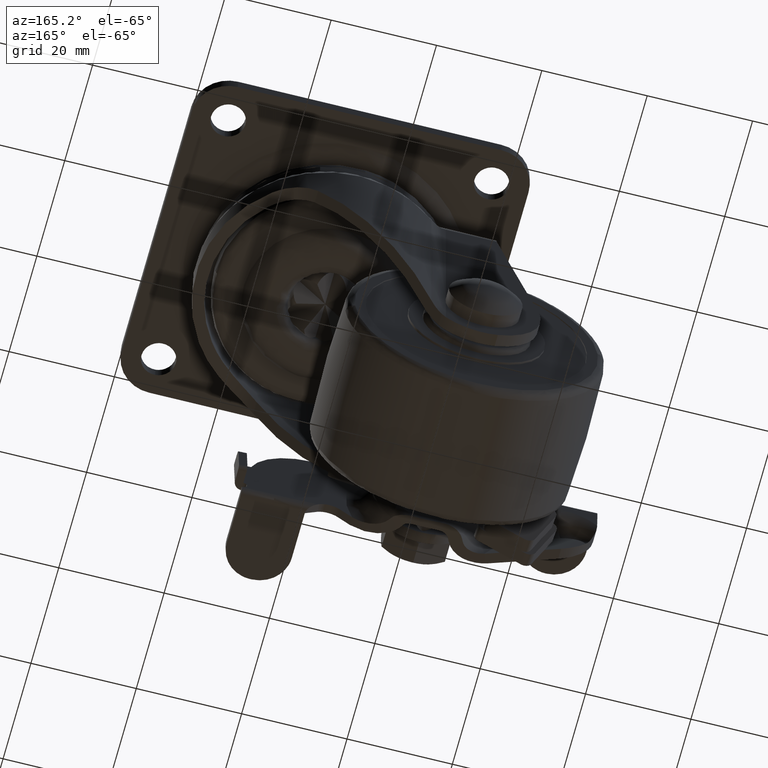
[diagram: clean part render]
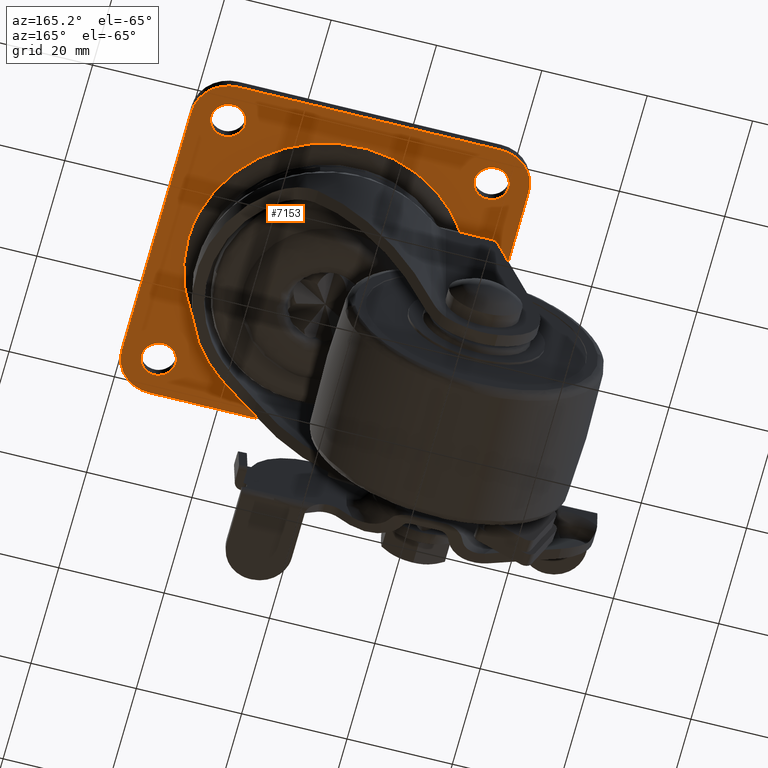
[diagram: same view with one face highlighted and labeled with its STEP entity id]
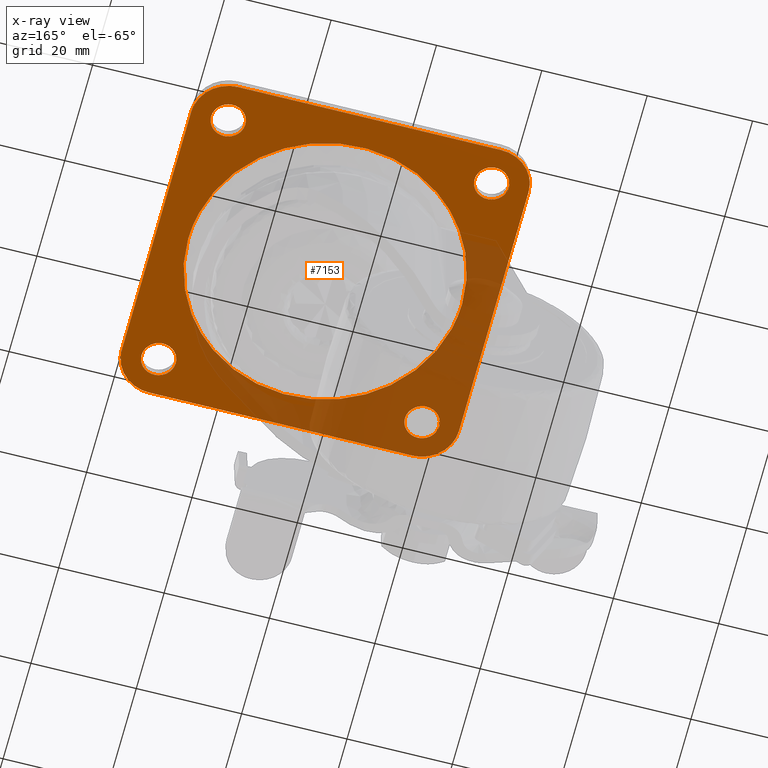
[diagram: x-ray of the same camera — body ghosted, the highlighted face saturated]
A machine part, auxiliary view. The second image highlights one B-rep face of the part: STEP entity #7153.
The next image is the same camera in x-ray: the body ghosted, the highlighted face saturated — about 34% of this face is hidden behind the body in this view.
In plain terms, the highlighted face is a freeform B-spline surface patch.
Its self-contained STEP definition (entity closure, byte-faithful):
#5211=CARTESIAN_POINT('',(-24.801592246450781,28.243938094867339,-2.300000000000080));
#5212=VERTEX_POINT('',#5211);
#5218=CARTESIAN_POINT('',(-21.750000000000000,25.0,-2.300000000000080));
#5219=VERTEX_POINT('',#5218);
#5220=CARTESIAN_POINT('',(-21.750000000000000,25.0,-2.300000000000080));
#5221=CARTESIAN_POINT('',(-21.750000000000000,28.057294717385968,-2.300000000000080));
#5222=CARTESIAN_POINT('',(-24.801592246450777,28.243938094867346,-2.300000000000080));
#5230=(BOUNDED_CURVE()B_SPLINE_CURVE(2,(#5220,#5221,#5222),.UNSPECIFIED.,.F.,.U.)B_SPLINE_CURVE_WITH_KNOTS((3,3),(0.500000000000000,0.739332962238727),.UNSPECIFIED.)CURVE()GEOMETRIC_REPRESENTATION_ITEM()RATIONAL_B_SPLINE_CURVE((1.0,0.719603993286963,0.976072041666256))REPRESENTATION_ITEM(''));
#5231=EDGE_CURVE('',#5219,#5212,#5230,.T.);
#5233=CARTESIAN_POINT('',(-25.198407753549219,21.756061905132661,-2.300000000000080));
#5234=VERTEX_POINT('',#5233);
#5235=CARTESIAN_POINT('',(-25.198407753549223,21.756061905132661,-2.300000000000080));
#5236=CARTESIAN_POINT('',(-25.099296480750962,21.750000000000004,-2.300000000000079));
#5237=CARTESIAN_POINT('',(-25.0,21.750000000000000,-2.300000000000080));
#5238=CARTESIAN_POINT('',(-21.750000000000004,21.750000000000004,-2.300000000000081));
#5239=CARTESIAN_POINT('',(-21.750000000000000,25.0,-2.300000000000080));
#5247=(BOUNDED_CURVE()B_SPLINE_CURVE(2,(#5235,#5236,#5237,#5238,#5239),.UNSPECIFIED.,.F.,.U.)B_SPLINE_CURVE_WITH_KNOTS((3,2,3),(0.239332962238727,0.250000000000000,0.500000000000000),.UNSPECIFIED.)CURVE()GEOMETRIC_REPRESENTATION_ITEM()RATIONAL_B_SPLINE_CURVE((0.976072041666255,0.987502787899585,1.0,0.707106781186547,1.0))REPRESENTATION_ITEM(''));
#5248=EDGE_CURVE('',#5234,#5219,#5247,.T.);
#5292=CARTESIAN_POINT('',(-28.250000000000000,25.0,-2.300000000000080));
#5293=VERTEX_POINT('',#5292);
#5294=CARTESIAN_POINT('',(-28.250000000000000,25.0,-2.300000000000080));
#5295=CARTESIAN_POINT('',(-28.249999999999996,21.942705282614028,-2.300000000000080));
#5296=CARTESIAN_POINT('',(-25.198407753549226,21.756061905132665,-2.300000000000080));
#5304=(BOUNDED_CURVE()B_SPLINE_CURVE(2,(#5294,#5295,#5296),.UNSPECIFIED.,.F.,.U.)B_SPLINE_CURVE_WITH_KNOTS((3,3),(0.0,0.239332962238727),.UNSPECIFIED.)CURVE()GEOMETRIC_REPRESENTATION_ITEM()RATIONAL_B_SPLINE_CURVE((1.0,0.719603993286963,0.976072041666255))REPRESENTATION_ITEM(''));
#5305=EDGE_CURVE('',#5293,#5234,#5304,.T.);
#5307=CARTESIAN_POINT('',(-24.801592246450777,28.243938094867346,-2.300000000000080));
#5308=CARTESIAN_POINT('',(-24.900703519249035,28.250000000000004,-2.300000000000079));
#5309=CARTESIAN_POINT('',(-25.0,28.250000000000000,-2.300000000000080));
#5310=CARTESIAN_POINT('',(-28.250000000000004,28.250000000000004,-2.300000000000081));
#5311=CARTESIAN_POINT('',(-28.250000000000000,25.0,-2.300000000000080));
#5319=(BOUNDED_CURVE()B_SPLINE_CURVE(2,(#5307,#5308,#5309,#5310,#5311),.UNSPECIFIED.,.F.,.U.)B_SPLINE_CURVE_WITH_KNOTS((3,2,3),(0.739332962238727,0.750000000000000,1.0),.UNSPECIFIED.)CURVE()GEOMETRIC_REPRESENTATION_ITEM()RATIONAL_B_SPLINE_CURVE((0.976072041666256,0.987502787899585,1.0,0.707106781186547,1.0))REPRESENTATION_ITEM(''));
#5320=EDGE_CURVE('',#5212,#5293,#5319,.T.);
#5393=CARTESIAN_POINT('',(25.198407753549219,28.243938094867339,-2.300000000000080));
#5394=VERTEX_POINT('',#5393);
#5400=CARTESIAN_POINT('',(28.250000000000000,25.0,-2.300000000000080));
#5401=VERTEX_POINT('',#5400);
#5402=CARTESIAN_POINT('',(28.250000000000000,25.0,-2.300000000000080));
#5403=CARTESIAN_POINT('',(28.250000000000007,28.057294717385975,-2.300000000000079));
#5404=CARTESIAN_POINT('',(25.198407753549219,28.243938094867332,-2.300000000000080));
#5412=(BOUNDED_CURVE()B_SPLINE_CURVE(2,(#5402,#5403,#5404),.UNSPECIFIED.,.F.,.U.)B_SPLINE_CURVE_WITH_KNOTS((3,3),(0.500000000000000,0.739332962238727),.UNSPECIFIED.)CURVE()GEOMETRIC_REPRESENTATION_ITEM()RATIONAL_B_SPLINE_CURVE((1.0,0.719603993286963,0.976072041666255))REPRESENTATION_ITEM(''));
#5413=EDGE_CURVE('',#5401,#5394,#5412,.T.);
#5415=CARTESIAN_POINT('',(24.801592246450781,21.756061905132661,-2.300000000000080));
#5416=VERTEX_POINT('',#5415);
#5417=CARTESIAN_POINT('',(24.801592246450777,21.756061905132661,-2.300000000000080));
#5418=CARTESIAN_POINT('',(24.900703519249035,21.750000000000004,-2.300000000000079));
#5419=CARTESIAN_POINT('',(25.0,21.750000000000000,-2.300000000000080));
#5420=CARTESIAN_POINT('',(28.250000000000004,21.750000000000004,-2.300000000000081));
#5421=CARTESIAN_POINT('',(28.250000000000000,25.0,-2.300000000000080));
#5429=(BOUNDED_CURVE()B_SPLINE_CURVE(2,(#5417,#5418,#5419,#5420,#5421),.UNSPECIFIED.,.F.,.U.)B_SPLINE_CURVE_WITH_KNOTS((3,2,3),(0.239332962238727,0.250000000000000,0.500000000000000),.UNSPECIFIED.)CURVE()GEOMETRIC_REPRESENTATION_ITEM()RATIONAL_B_SPLINE_CURVE((0.976072041666255,0.987502787899585,1.0,0.707106781186547,1.0))REPRESENTATION_ITEM(''));
#5430=EDGE_CURVE('',#5416,#5401,#5429,.T.);
#5474=CARTESIAN_POINT('',(21.750000000000000,25.0,-2.300000000000080));
#5475=VERTEX_POINT('',#5474);
#5476=CARTESIAN_POINT('',(21.750000000000000,25.0,-2.300000000000080));
#5477=CARTESIAN_POINT('',(21.750000000000011,21.942705282614039,-2.300000000000080));
#5478=CARTESIAN_POINT('',(24.801592246450781,21.756061905132658,-2.300000000000080));
#5486=(BOUNDED_CURVE()B_SPLINE_CURVE(2,(#5476,#5477,#5478),.UNSPECIFIED.,.F.,.U.)B_SPLINE_CURVE_WITH_KNOTS((3,3),(0.0,0.239332962238727),.UNSPECIFIED.)CURVE()GEOMETRIC_REPRESENTATION_ITEM()RATIONAL_B_SPLINE_CURVE((1.0,0.719603993286963,0.976072041666255))REPRESENTATION_ITEM(''));
#5487=EDGE_CURVE('',#5475,#5416,#5486,.T.);
#5489=CARTESIAN_POINT('',(25.198407753549226,28.243938094867342,-2.300000000000080));
#5490=CARTESIAN_POINT('',(25.099296480750969,28.250000000000004,-2.300000000000080));
#5491=CARTESIAN_POINT('',(25.0,28.250000000000000,-2.300000000000080));
#5492=CARTESIAN_POINT('',(21.750000000000004,28.250000000000004,-2.300000000000081));
#5493=CARTESIAN_POINT('',(21.750000000000000,25.0,-2.300000000000080));
#5501=(BOUNDED_CURVE()B_SPLINE_CURVE(2,(#5489,#5490,#5491,#5492,#5493),.UNSPECIFIED.,.F.,.U.)B_SPLINE_CURVE_WITH_KNOTS((3,2,3),(0.739332962238727,0.750000000000000,1.0),.UNSPECIFIED.)CURVE()GEOMETRIC_REPRESENTATION_ITEM()RATIONAL_B_SPLINE_CURVE((0.976072041666255,0.987502787899584,1.0,0.707106781186547,1.0))REPRESENTATION_ITEM(''));
#5502=EDGE_CURVE('',#5394,#5475,#5501,.T.);
#5575=CARTESIAN_POINT('',(-24.801592246450781,-21.756061905132661,-2.300000000000080));
#5576=VERTEX_POINT('',#5575);
#5582=CARTESIAN_POINT('',(-21.750000000000000,-25.0,-2.300000000000080));
#5583=VERTEX_POINT('',#5582);
#5584=CARTESIAN_POINT('',(-21.750000000000000,-25.0,-2.300000000000080));
#5585=CARTESIAN_POINT('',(-21.750000000000000,-21.942705282614032,-2.300000000000080));
#5586=CARTESIAN_POINT('',(-24.801592246450777,-21.756061905132658,-2.300000000000080));
#5594=(BOUNDED_CURVE()B_SPLINE_CURVE(2,(#5584,#5585,#5586),.UNSPECIFIED.,.F.,.U.)B_SPLINE_CURVE_WITH_KNOTS((3,3),(0.500000000000000,0.739332962238727),.UNSPECIFIED.)CURVE()GEOMETRIC_REPRESENTATION_ITEM()RATIONAL_B_SPLINE_CURVE((1.0,0.719603993286963,0.976072041666256))REPRESENTATION_ITEM(''));
#5595=EDGE_CURVE('',#5583,#5576,#5594,.T.);
#5597=CARTESIAN_POINT('',(-25.198407753549219,-28.243938094867339,-2.300000000000080));
#5598=VERTEX_POINT('',#5597);
#5599=CARTESIAN_POINT('',(-25.198407753549223,-28.243938094867339,-2.300000000000080));
#5600=CARTESIAN_POINT('',(-25.099296480750969,-28.250000000000004,-2.300000000000080));
#5601=CARTESIAN_POINT('',(-25.0,-28.250000000000000,-2.300000000000080));
#5602=CARTESIAN_POINT('',(-21.750000000000004,-28.250000000000004,-2.300000000000081));
#5603=CARTESIAN_POINT('',(-21.750000000000000,-25.0,-2.300000000000080));
#5611=(BOUNDED_CURVE()B_SPLINE_CURVE(2,(#5599,#5600,#5601,#5602,#5603),.UNSPECIFIED.,.F.,.U.)B_SPLINE_CURVE_WITH_KNOTS((3,2,3),(0.239332962238727,0.250000000000000,0.500000000000000),.UNSPECIFIED.)CURVE()GEOMETRIC_REPRESENTATION_ITEM()RATIONAL_B_SPLINE_CURVE((0.976072041666255,0.987502787899584,1.0,0.707106781186547,1.0))REPRESENTATION_ITEM(''));
#5612=EDGE_CURVE('',#5598,#5583,#5611,.T.);
#5656=CARTESIAN_POINT('',(-28.250000000000000,-25.0,-2.300000000000080));
#5657=VERTEX_POINT('',#5656);
#5658=CARTESIAN_POINT('',(-28.250000000000000,-25.0,-2.300000000000080));
#5659=CARTESIAN_POINT('',(-28.249999999999996,-28.057294717385968,-2.300000000000080));
#5660=CARTESIAN_POINT('',(-25.198407753549230,-28.243938094867335,-2.300000000000080));
#5668=(BOUNDED_CURVE()B_SPLINE_CURVE(2,(#5658,#5659,#5660),.UNSPECIFIED.,.F.,.U.)B_SPLINE_CURVE_WITH_KNOTS((3,3),(0.0,0.239332962238727),.UNSPECIFIED.)CURVE()GEOMETRIC_REPRESENTATION_ITEM()RATIONAL_B_SPLINE_CURVE((1.0,0.719603993286963,0.976072041666255))REPRESENTATION_ITEM(''));
#5669=EDGE_CURVE('',#5657,#5598,#5668,.T.);
#5671=CARTESIAN_POINT('',(-24.801592246450777,-21.756061905132658,-2.300000000000080));
#5672=CARTESIAN_POINT('',(-24.900703519249035,-21.750000000000004,-2.300000000000079));
#5673=CARTESIAN_POINT('',(-25.0,-21.750000000000000,-2.300000000000080));
#5674=CARTESIAN_POINT('',(-28.250000000000004,-21.750000000000004,-2.300000000000081));
#5675=CARTESIAN_POINT('',(-28.250000000000000,-25.0,-2.300000000000080));
#5683=(BOUNDED_CURVE()B_SPLINE_CURVE(2,(#5671,#5672,#5673,#5674,#5675),.UNSPECIFIED.,.F.,.U.)B_SPLINE_CURVE_WITH_KNOTS((3,2,3),(0.739332962238727,0.750000000000000,1.0),.UNSPECIFIED.)CURVE()GEOMETRIC_REPRESENTATION_ITEM()RATIONAL_B_SPLINE_CURVE((0.976072041666256,0.987502787899585,1.0,0.707106781186547,1.0))REPRESENTATION_ITEM(''));
#5684=EDGE_CURVE('',#5576,#5657,#5683,.T.);
#5757=CARTESIAN_POINT('',(25.198407753549219,-21.756061905132661,-2.300000000000080));
#5758=VERTEX_POINT('',#5757);
#5764=CARTESIAN_POINT('',(28.250000000000000,-25.0,-2.300000000000080));
#5765=VERTEX_POINT('',#5764);
#5766=CARTESIAN_POINT('',(28.250000000000000,-25.0,-2.300000000000080));
#5767=CARTESIAN_POINT('',(28.250000000000000,-21.942705282614032,-2.300000000000080));
#5768=CARTESIAN_POINT('',(25.198407753549223,-21.756061905132658,-2.300000000000080));
#5776=(BOUNDED_CURVE()B_SPLINE_CURVE(2,(#5766,#5767,#5768),.UNSPECIFIED.,.F.,.U.)B_SPLINE_CURVE_WITH_KNOTS((3,3),(0.500000000000000,0.739332962238727),.UNSPECIFIED.)CURVE()GEOMETRIC_REPRESENTATION_ITEM()RATIONAL_B_SPLINE_CURVE((1.0,0.719603993286963,0.976072041666256))REPRESENTATION_ITEM(''));
#5777=EDGE_CURVE('',#5765,#5758,#5776,.T.);
#5779=CARTESIAN_POINT('',(24.801592246450781,-28.243938094867339,-2.300000000000079));
#5780=VERTEX_POINT('',#5779);
#5781=CARTESIAN_POINT('',(24.801592246450785,-28.243938094867342,-2.300000000000080));
#5782=CARTESIAN_POINT('',(24.900703519249031,-28.250000000000000,-2.300000000000080));
#5783=CARTESIAN_POINT('',(25.0,-28.250000000000000,-2.300000000000080));
#5784=CARTESIAN_POINT('',(28.250000000000004,-28.250000000000004,-2.300000000000081));
#5785=CARTESIAN_POINT('',(28.250000000000000,-25.0,-2.300000000000080));
#5793=(BOUNDED_CURVE()B_SPLINE_CURVE(2,(#5781,#5782,#5783,#5784,#5785),.UNSPECIFIED.,.F.,.U.)B_SPLINE_CURVE_WITH_KNOTS((3,2,3),(0.239332962238727,0.250000000000000,0.500000000000000),.UNSPECIFIED.)CURVE()GEOMETRIC_REPRESENTATION_ITEM()RATIONAL_B_SPLINE_CURVE((0.976072041666256,0.987502787899585,1.0,0.707106781186547,1.0))REPRESENTATION_ITEM(''));
#5794=EDGE_CURVE('',#5780,#5765,#5793,.T.);
#5838=CARTESIAN_POINT('',(21.750000000000000,-25.0,-2.300000000000080));
#5839=VERTEX_POINT('',#5838);
#5840=CARTESIAN_POINT('',(21.750000000000000,-25.0,-2.300000000000080));
#5841=CARTESIAN_POINT('',(21.750000000000014,-28.057294717385968,-2.300000000000080));
#5842=CARTESIAN_POINT('',(24.801592246450777,-28.243938094867339,-2.300000000000080));
#5850=(BOUNDED_CURVE()B_SPLINE_CURVE(2,(#5840,#5841,#5842),.UNSPECIFIED.,.F.,.U.)B_SPLINE_CURVE_WITH_KNOTS((3,3),(0.0,0.239332962238727),.UNSPECIFIED.)CURVE()GEOMETRIC_REPRESENTATION_ITEM()RATIONAL_B_SPLINE_CURVE((1.0,0.719603993286963,0.976072041666255))REPRESENTATION_ITEM(''));
#5851=EDGE_CURVE('',#5839,#5780,#5850,.T.);
#5853=CARTESIAN_POINT('',(25.198407753549223,-21.756061905132658,-2.300000000000080));
#5854=CARTESIAN_POINT('',(25.099296480750962,-21.750000000000004,-2.300000000000079));
#5855=CARTESIAN_POINT('',(25.0,-21.750000000000000,-2.300000000000080));
#5856=CARTESIAN_POINT('',(21.750000000000004,-21.750000000000004,-2.300000000000081));
#5857=CARTESIAN_POINT('',(21.750000000000000,-25.0,-2.300000000000080));
#5865=(BOUNDED_CURVE()B_SPLINE_CURVE(2,(#5853,#5854,#5855,#5856,#5857),.UNSPECIFIED.,.F.,.U.)B_SPLINE_CURVE_WITH_KNOTS((3,2,3),(0.739332962238727,0.750000000000000,1.0),.UNSPECIFIED.)CURVE()GEOMETRIC_REPRESENTATION_ITEM()RATIONAL_B_SPLINE_CURVE((0.976072041666256,0.987502787899585,1.0,0.707106781186547,1.0))REPRESENTATION_ITEM(''));
#5866=EDGE_CURVE('',#5758,#5839,#5865,.T.);
#6778=CARTESIAN_POINT('',(15.806190535185120,-20.643755586082079,-2.299995616352499));
#6779=VERTEX_POINT('',#6778);
#6793=CARTESIAN_POINT('',(-26.0,0.0,-2.300000000000102));
#6794=VERTEX_POINT('',#6793);
#6795=CARTESIAN_POINT('',(15.806190535185124,-20.643755586082072,-2.299995616352498));
#6796=CARTESIAN_POINT('',(8.810633902118191,-26.000004252482405,-2.299995983117037));
#6797=CARTESIAN_POINT('',(0.000002653926748,-26.000003466174530,-2.299996725861266));
#6798=CARTESIAN_POINT('',(-25.999999122705255,-26.000001145795270,-2.299998917685068));
#6799=CARTESIAN_POINT('',(-26.0,0.0,-2.300000000000102));
#6807=(BOUNDED_CURVE()B_SPLINE_CURVE(2,(#6795,#6796,#6797,#6798,#6799),.UNSPECIFIED.,.F.,.U.)B_SPLINE_CURVE_WITH_KNOTS((3,2,3),(0.644938189342984,0.750000000000000,1.0),.UNSPECIFIED.)CURVE()GEOMETRIC_REPRESENTATION_ITEM()RATIONAL_B_SPLINE_CURVE((0.857279286582045,0.876912432409188,1.0,0.707106781186547,1.0))REPRESENTATION_ITEM(''));
#6808=EDGE_CURVE('',#6779,#6794,#6807,.T.);
#6810=CARTESIAN_POINT('',(-15.806190535185120,20.643755586082079,-2.299995616352499));
#6811=VERTEX_POINT('',#6810);
#6812=CARTESIAN_POINT('',(-26.0,0.0,-2.300000000000102));
#6813=CARTESIAN_POINT('',(-26.000001776632001,12.838712648363053,-2.299997808176300));
#6814=CARTESIAN_POINT('',(-15.806190535185124,20.643755586082072,-2.299995616352500));
#6822=(BOUNDED_CURVE()B_SPLINE_CURVE(2,(#6812,#6813,#6814),.UNSPECIFIED.,.F.,.U.)B_SPLINE_CURVE_WITH_KNOTS((3,3),(0.0,0.144938189342984),.UNSPECIFIED.)CURVE()GEOMETRIC_REPRESENTATION_ITEM()RATIONAL_B_SPLINE_CURVE((1.0,0.830194348777359,0.857279286582045))REPRESENTATION_ITEM(''));
#6823=EDGE_CURVE('',#6794,#6811,#6822,.T.);
#6868=CARTESIAN_POINT('',(26.0,0.0,-2.300000000000095));
#6869=VERTEX_POINT('',#6868);
#6870=CARTESIAN_POINT('',(-15.806190535185124,20.643755586082072,-2.299995616352500));
#6871=CARTESIAN_POINT('',(-8.810633902118189,26.000004252482405,-2.299995983117037));
#6872=CARTESIAN_POINT('',(-0.000002653926747,26.000003466174530,-2.299996725861265));
#6873=CARTESIAN_POINT('',(25.999999122705255,26.000001145795270,-2.299998917685064));
#6874=CARTESIAN_POINT('',(26.0,0.0,-2.300000000000095));
#6882=(BOUNDED_CURVE()B_SPLINE_CURVE(2,(#6870,#6871,#6872,#6873,#6874),.UNSPECIFIED.,.F.,.U.)B_SPLINE_CURVE_WITH_KNOTS((3,2,3),(0.144938189342984,0.250000000000000,0.500000000000000),.UNSPECIFIED.)CURVE()GEOMETRIC_REPRESENTATION_ITEM()RATIONAL_B_SPLINE_CURVE((0.857279286582045,0.876912432409188,1.0,0.707106781186547,1.0))REPRESENTATION_ITEM(''));
#6883=EDGE_CURVE('',#6811,#6869,#6882,.T.);
#6885=CARTESIAN_POINT('',(26.0,0.0,-2.300000000000095));
#6886=CARTESIAN_POINT('',(26.000001776632001,-12.838712648363053,-2.299997808176296));
#6887=CARTESIAN_POINT('',(15.806190535185124,-20.643755586082072,-2.299995616352498));
#6895=(BOUNDED_CURVE()B_SPLINE_CURVE(2,(#6885,#6886,#6887),.UNSPECIFIED.,.F.,.U.)B_SPLINE_CURVE_WITH_KNOTS((3,3),(0.500000000000000,0.644938189342984),.UNSPECIFIED.)CURVE()GEOMETRIC_REPRESENTATION_ITEM()RATIONAL_B_SPLINE_CURVE((1.0,0.830194348777359,0.857279286582045))REPRESENTATION_ITEM(''));
#6896=EDGE_CURVE('',#6869,#6779,#6895,.T.);
#7028=CARTESIAN_POINT('',(-35.196799875955577,35.196799875955577,-2.300000000000095));
#7029=CARTESIAN_POINT('',(35.196801592569351,35.196799875955577,-2.300000000000095));
#7030=CARTESIAN_POINT('',(-35.196799875955577,-35.196801592569351,-2.300000000000095));
#7031=CARTESIAN_POINT('',(35.196801592569351,-35.196801592569351,-2.300000000000095));
#7032=B_SPLINE_SURFACE_WITH_KNOTS('',1,1,((#7028,#7030),(#7029,#7031)),.UNSPECIFIED.,.F.,.F.,.U.,(2,2),(2,2),(0.0,70.393601468524935),(0.0,70.393601468524935),.UNSPECIFIED.);
#7033=CARTESIAN_POINT('',(25.0,32.0,-2.300000000000080));
#7034=VERTEX_POINT('',#7033);
#7035=CARTESIAN_POINT('',(-25.0,32.0,-2.300000000000080));
#7036=VERTEX_POINT('',#7035);
#7037=CARTESIAN_POINT('',(25.0,32.0,-2.300000000000080));
#7038=CARTESIAN_POINT('',(-25.0,32.0,-2.300000000000080));
#7039=QUASI_UNIFORM_CURVE('',1,(#7037,#7038),.UNSPECIFIED.,.F.,.U.);
#7040=EDGE_CURVE('',#7034,#7036,#7039,.T.);
#7041=ORIENTED_EDGE('',*,*,#7040,.F.);
#7042=CARTESIAN_POINT('',(32.0,25.0,-2.300000000000080));
#7043=VERTEX_POINT('',#7042);
#7044=CARTESIAN_POINT('',(32.0,25.0,-2.300000000000080));
#7045=CARTESIAN_POINT('',(32.0,32.0,-2.300000000000081));
#7046=CARTESIAN_POINT('',(25.0,32.0,-2.300000000000080));
#7054=(BOUNDED_CURVE()B_SPLINE_CURVE(2,(#7044,#7045,#7046),.UNSPECIFIED.,.F.,.U.)CURVE()GEOMETRIC_REPRESENTATION_ITEM()QUASI_UNIFORM_CURVE()RATIONAL_B_SPLINE_CURVE((1.0,0.707106781186547,1.0))REPRESENTATION_ITEM(''));
#7055=EDGE_CURVE('',#7043,#7034,#7054,.T.);
#7056=ORIENTED_EDGE('',*,*,#7055,.F.);
#7057=CARTESIAN_POINT('',(32.0,-25.0,-2.300000000000080));
#7058=VERTEX_POINT('',#7057);
#7059=CARTESIAN_POINT('',(32.0,-25.0,-2.300000000000080));
#7060=CARTESIAN_POINT('',(32.0,25.0,-2.300000000000080));
#7061=QUASI_UNIFORM_CURVE('',1,(#7059,#7060),.UNSPECIFIED.,.F.,.U.);
#7062=EDGE_CURVE('',#7058,#7043,#7061,.T.);
#7063=ORIENTED_EDGE('',*,*,#7062,.F.);
#7064=CARTESIAN_POINT('',(25.0,-32.0,-2.300000000000080));
#7065=VERTEX_POINT('',#7064);
#7066=CARTESIAN_POINT('',(25.0,-32.0,-2.300000000000080));
#7067=CARTESIAN_POINT('',(32.0,-32.0,-2.300000000000081));
#7068=CARTESIAN_POINT('',(32.0,-25.0,-2.300000000000080));
#7076=(BOUNDED_CURVE()B_SPLINE_CURVE(2,(#7066,#7067,#7068),.UNSPECIFIED.,.F.,.U.)CURVE()GEOMETRIC_REPRESENTATION_ITEM()QUASI_UNIFORM_CURVE()RATIONAL_B_SPLINE_CURVE((1.0,0.707106781186547,1.0))REPRESENTATION_ITEM(''));
#7077=EDGE_CURVE('',#7065,#7058,#7076,.T.);
#7078=ORIENTED_EDGE('',*,*,#7077,.F.);
#7079=CARTESIAN_POINT('',(-25.0,-32.0,-2.300000000000080));
#7080=VERTEX_POINT('',#7079);
#7081=CARTESIAN_POINT('',(-25.0,-32.0,-2.300000000000080));
#7082=CARTESIAN_POINT('',(25.0,-32.0,-2.300000000000080));
#7083=QUASI_UNIFORM_CURVE('',1,(#7081,#7082),.UNSPECIFIED.,.F.,.U.);
#7084=EDGE_CURVE('',#7080,#7065,#7083,.T.);
#7085=ORIENTED_EDGE('',*,*,#7084,.F.);
#7086=CARTESIAN_POINT('',(-32.0,-25.0,-2.300000000000080));
#7087=VERTEX_POINT('',#7086);
#7088=CARTESIAN_POINT('',(-32.0,-25.0,-2.300000000000080));
#7089=CARTESIAN_POINT('',(-32.0,-32.0,-2.300000000000081));
#7090=CARTESIAN_POINT('',(-25.0,-32.0,-2.300000000000080));
#7098=(BOUNDED_CURVE()B_SPLINE_CURVE(2,(#7088,#7089,#7090),.UNSPECIFIED.,.F.,.U.)CURVE()GEOMETRIC_REPRESENTATION_ITEM()QUASI_UNIFORM_CURVE()RATIONAL_B_SPLINE_CURVE((1.0,0.707106781186547,1.0))REPRESENTATION_ITEM(''));
#7099=EDGE_CURVE('',#7087,#7080,#7098,.T.);
#7100=ORIENTED_EDGE('',*,*,#7099,.F.);
#7101=CARTESIAN_POINT('',(-32.0,25.0,-2.300000000000080));
#7102=VERTEX_POINT('',#7101);
#7103=CARTESIAN_POINT('',(-32.0,25.0,-2.300000000000080));
#7104=CARTESIAN_POINT('',(-32.0,-25.0,-2.300000000000080));
#7105=QUASI_UNIFORM_CURVE('',1,(#7103,#7104),.UNSPECIFIED.,.F.,.U.);
#7106=EDGE_CURVE('',#7102,#7087,#7105,.T.);
#7107=ORIENTED_EDGE('',*,*,#7106,.F.);
#7108=CARTESIAN_POINT('',(-25.0,32.0,-2.300000000000080));
#7109=CARTESIAN_POINT('',(-32.0,32.0,-2.300000000000081));
#7110=CARTESIAN_POINT('',(-32.0,25.0,-2.300000000000080));
#7118=(BOUNDED_CURVE()B_SPLINE_CURVE(2,(#7108,#7109,#7110),.UNSPECIFIED.,.F.,.U.)CURVE()GEOMETRIC_REPRESENTATION_ITEM()QUASI_UNIFORM_CURVE()RATIONAL_B_SPLINE_CURVE((1.0,0.707106781186547,1.0))REPRESENTATION_ITEM(''));
#7119=EDGE_CURVE('',#7036,#7102,#7118,.T.);
#7120=ORIENTED_EDGE('',*,*,#7119,.F.);
#7121=EDGE_LOOP('',(#7041,#7056,#7063,#7078,#7085,#7100,#7107,#7120));
#7122=FACE_OUTER_BOUND('',#7121,.T.);
#7123=ORIENTED_EDGE('',*,*,#6823,.F.);
#7124=ORIENTED_EDGE('',*,*,#6808,.F.);
#7125=ORIENTED_EDGE('',*,*,#6896,.F.);
#7126=ORIENTED_EDGE('',*,*,#6883,.F.);
#7127=EDGE_LOOP('',(#7123,#7124,#7125,#7126));
#7128=FACE_BOUND('',#7127,.T.);
#7129=ORIENTED_EDGE('',*,*,#5777,.T.);
#7130=ORIENTED_EDGE('',*,*,#5866,.T.);
#7131=ORIENTED_EDGE('',*,*,#5851,.T.);
#7132=ORIENTED_EDGE('',*,*,#5794,.T.);
#7133=EDGE_LOOP('',(#7129,#7130,#7131,#7132));
#7134=FACE_BOUND('',#7133,.T.);
#7135=ORIENTED_EDGE('',*,*,#5595,.T.);
#7136=ORIENTED_EDGE('',*,*,#5684,.T.);
#7137=ORIENTED_EDGE('',*,*,#5669,.T.);
#7138=ORIENTED_EDGE('',*,*,#5612,.T.);
#7139=EDGE_LOOP('',(#7135,#7136,#7137,#7138));
#7140=FACE_BOUND('',#7139,.T.);
#7141=ORIENTED_EDGE('',*,*,#5413,.T.);
#7142=ORIENTED_EDGE('',*,*,#5502,.T.);
#7143=ORIENTED_EDGE('',*,*,#5487,.T.);
#7144=ORIENTED_EDGE('',*,*,#5430,.T.);
#7145=EDGE_LOOP('',(#7141,#7142,#7143,#7144));
#7146=FACE_BOUND('',#7145,.T.);
#7147=ORIENTED_EDGE('',*,*,#5231,.T.);
#7148=ORIENTED_EDGE('',*,*,#5320,.T.);
#7149=ORIENTED_EDGE('',*,*,#5305,.T.);
#7150=ORIENTED_EDGE('',*,*,#5248,.T.);
#7151=EDGE_LOOP('',(#7147,#7148,#7149,#7150));
#7152=FACE_BOUND('',#7151,.T.);
#7153=ADVANCED_FACE('',(#7122,#7128,#7134,#7140,#7146,#7152),#7032,.T.);